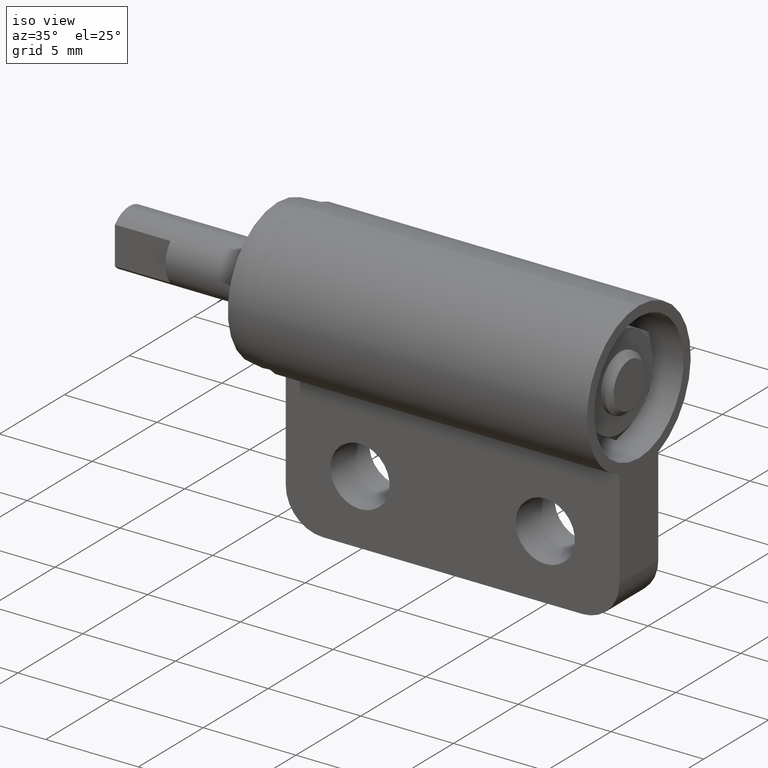
[diagram: clean part render]
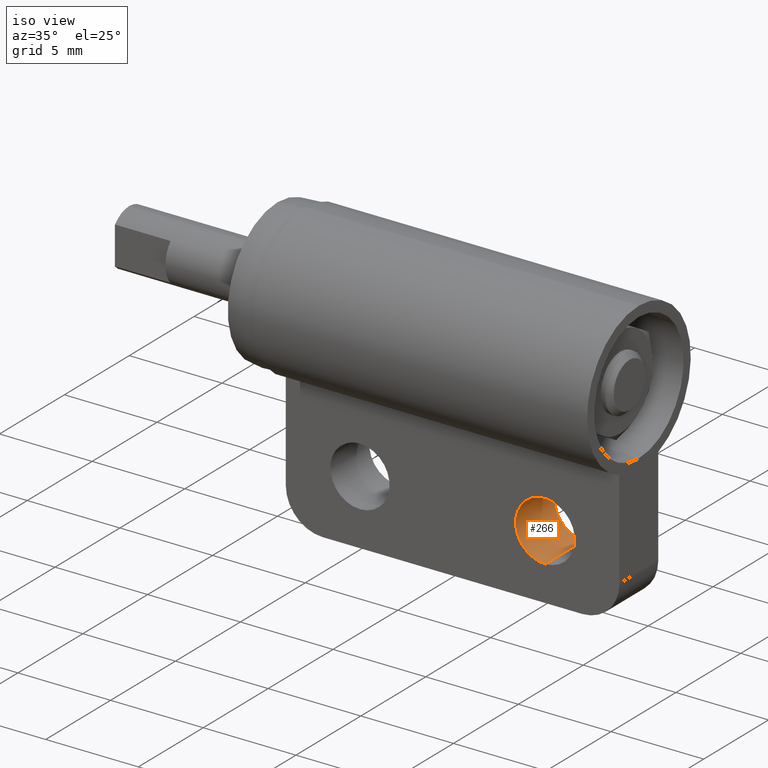
[diagram: same view with one face highlighted and labeled with its STEP entity id]
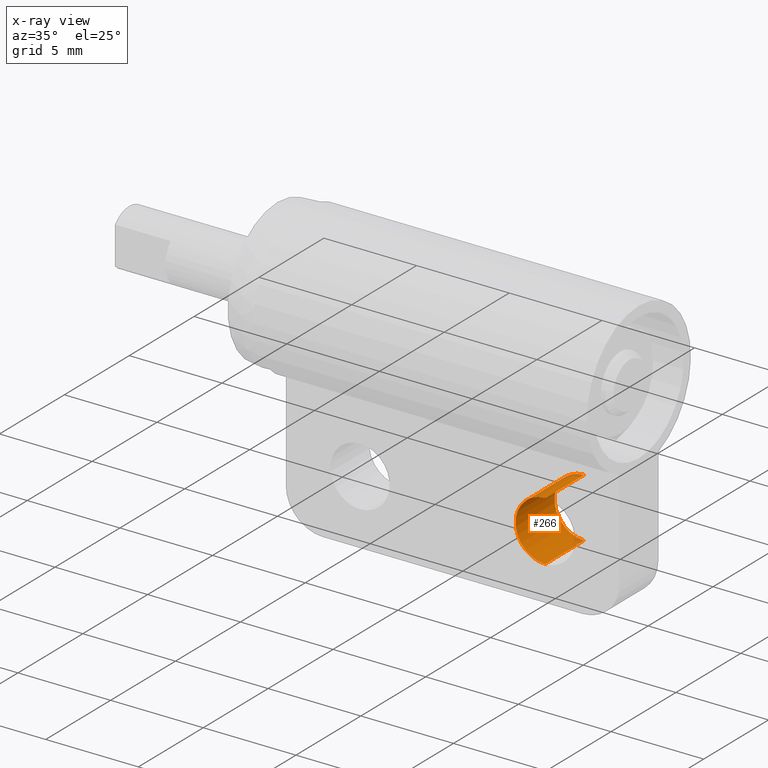
[diagram: x-ray of the same camera — body ghosted, the highlighted face saturated]
A machine part, iso view. The second image highlights one B-rep face of the part: STEP entity #266.
The next image is the same camera in x-ray: the body ghosted, the highlighted face saturated — about 4% of this face is hidden behind the body in this view.
In plain terms, the highlighted cylindrical surface (edge-blend (fillet) strip) has radius 1.6 mm, axis along (0, 1, 0).
Its self-contained STEP definition (entity closure, byte-faithful):
#266=ADVANCED_FACE('',(#733),#732,.F.);
#732=CYLINDRICAL_SURFACE('',#1232,1.60000000000E+00);
#733=FACE_OUTER_BOUND('',#1233,.T.);
#1229=CARTESIAN_POINT('',(2.05000000000E+01,1.80000000000E+00,-7.50000000000E+00));
#1230=DIRECTION('',(-0.00000000000E+00,1.00000000000E+00,-0.00000000000E+00));
#1231=DIRECTION('',(2.22044604925E-15,-0.00000000000E+00,-1.00000000000E+00));
#1232=AXIS2_PLACEMENT_3D('',#1229,#1230,#1231);
#1233=EDGE_LOOP('',(#1565,#1566,#1567,#1568));
#1565=ORIENTED_EDGE('',*,*,#1755,.T.);
#1566=ORIENTED_EDGE('',*,*,#1776,.F.);
#1567=ORIENTED_EDGE('',*,*,#1764,.T.);
#1568=ORIENTED_EDGE('',*,*,#1777,.F.);
#1755=EDGE_CURVE('',#2409,#2408,#2416,.T.);
#1764=EDGE_CURVE('',#2471,#2470,#2478,.T.);
#1776=EDGE_CURVE('',#2471,#2408,#2556,.T.);
#1777=EDGE_CURVE('',#2409,#2470,#2562,.T.);
#2408=VERTEX_POINT('',#3207);
#2409=VERTEX_POINT('',#3208);
#2416=CIRCLE('',#3216,1.60000000000E+00);
#2470=VERTEX_POINT('',#3248);
#2471=VERTEX_POINT('',#3249);
#2478=CIRCLE('',#3257,1.60000000000E+00);
#2556=LINE('',#3305,#3306);
#2562=LINE('',#3308,#3309);
#3207=CARTESIAN_POINT('',(2.05000000000E+01,1.50000000000E+00,-5.90000000000E+00));
#3208=CARTESIAN_POINT('',(2.05000000000E+01,1.50000000000E+00,-9.10000000000E+00));
#3213=CARTESIAN_POINT('',(2.05000000000E+01,1.50000000000E+00,-7.50000000000E+00));
#3214=DIRECTION('',(0.00000000000E+00,1.00000000000E+00,0.00000000000E+00));
#3215=DIRECTION('',(-0.00000000000E+00,-0.00000000000E+00,1.00000000000E+00));
#3216=AXIS2_PLACEMENT_3D('',#3213,#3214,#3215);
#3248=CARTESIAN_POINT('',(2.05000000000E+01,-1.50000000000E+00,-9.10000000000E+00));
#3249=CARTESIAN_POINT('',(2.05000000000E+01,-1.50000000000E+00,-5.90000000000E+00));
#3254=CARTESIAN_POINT('',(2.05000000000E+01,-1.50000000000E+00,-7.50000000000E+00));
#3255=DIRECTION('',(0.00000000000E+00,-1.00000000000E+00,0.00000000000E+00));
#3256=DIRECTION('',(-0.00000000000E+00,-0.00000000000E+00,-1.00000000000E+00));
#3257=AXIS2_PLACEMENT_3D('',#3254,#3255,#3256);
#3305=CARTESIAN_POINT('',(2.05000000000E+01,-1.50000000000E+00,-5.90000000000E+00));
#3306=VECTOR('',#3307,3.00000000000E+00);
#3307=DIRECTION('',(0.00000000000E+00,1.00000000000E+00,0.00000000000E+00));
#3308=CARTESIAN_POINT('',(2.05000000000E+01,1.50000000000E+00,-9.10000000000E+00));
#3309=VECTOR('',#3310,3.00000000000E+00);
#3310=DIRECTION('',(0.00000000000E+00,-1.00000000000E+00,0.00000000000E+00));